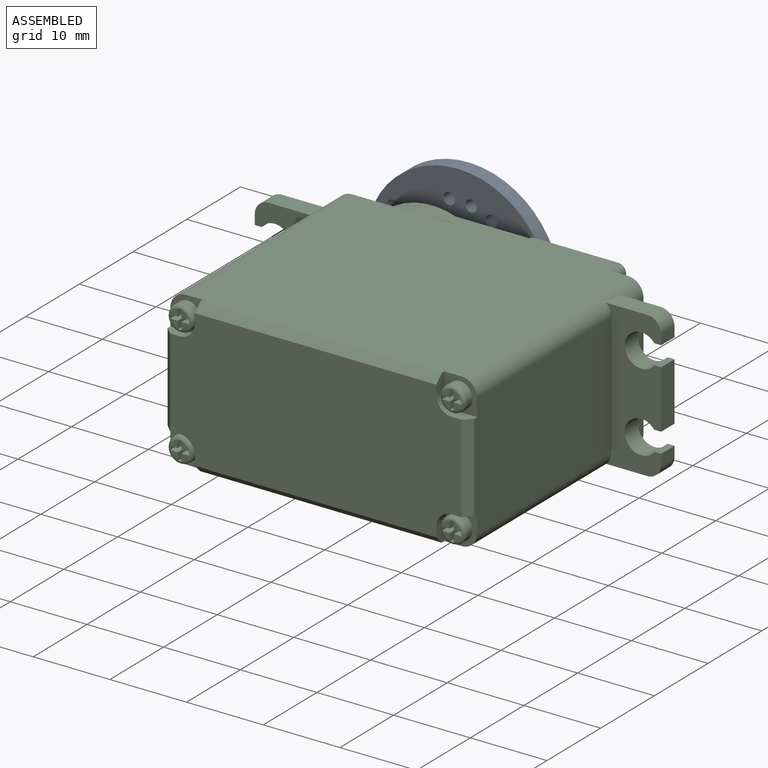
[diagram: assembled view]
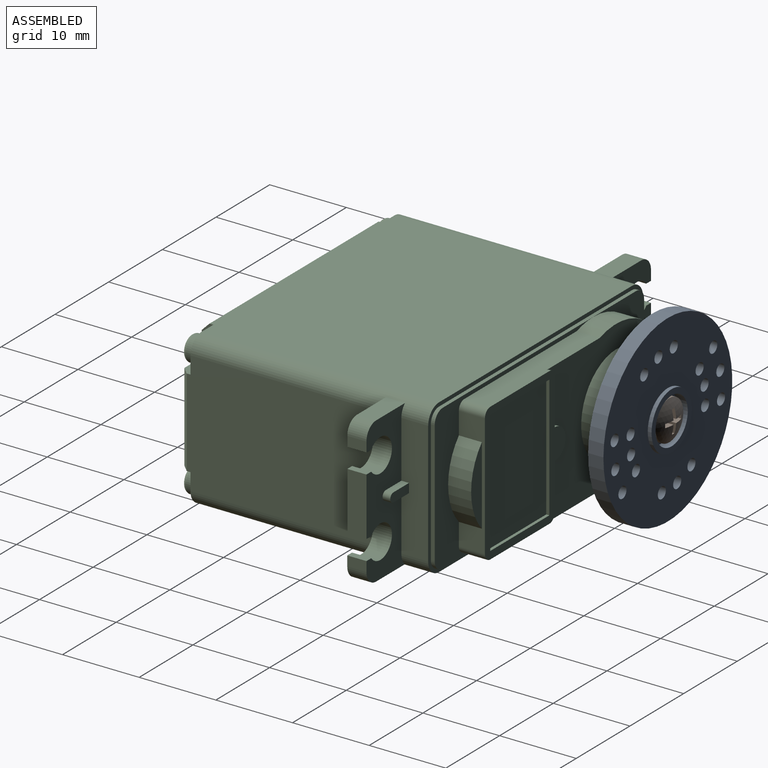
[diagram: assembled view, second angle]
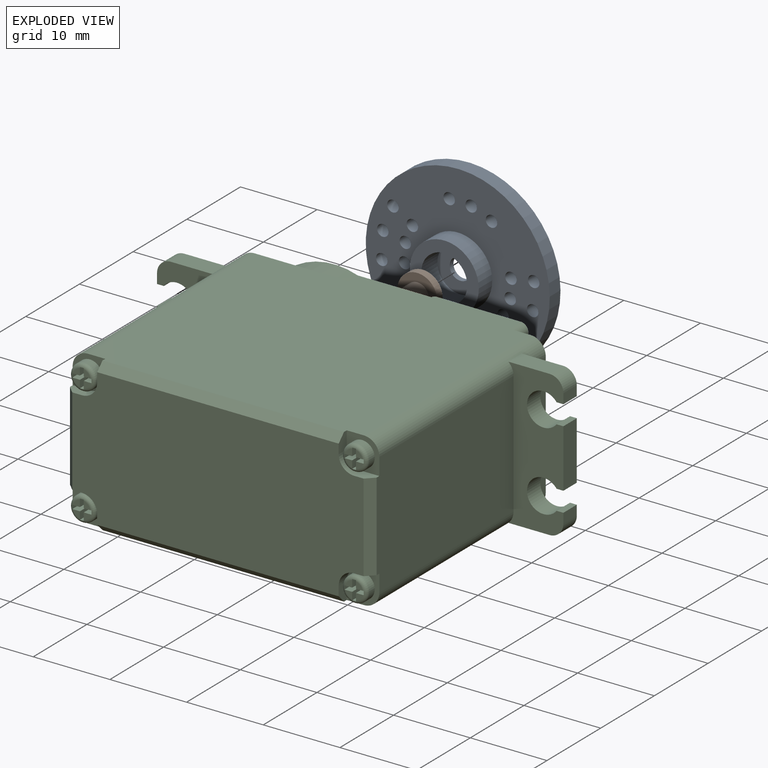
[diagram: exploded view]
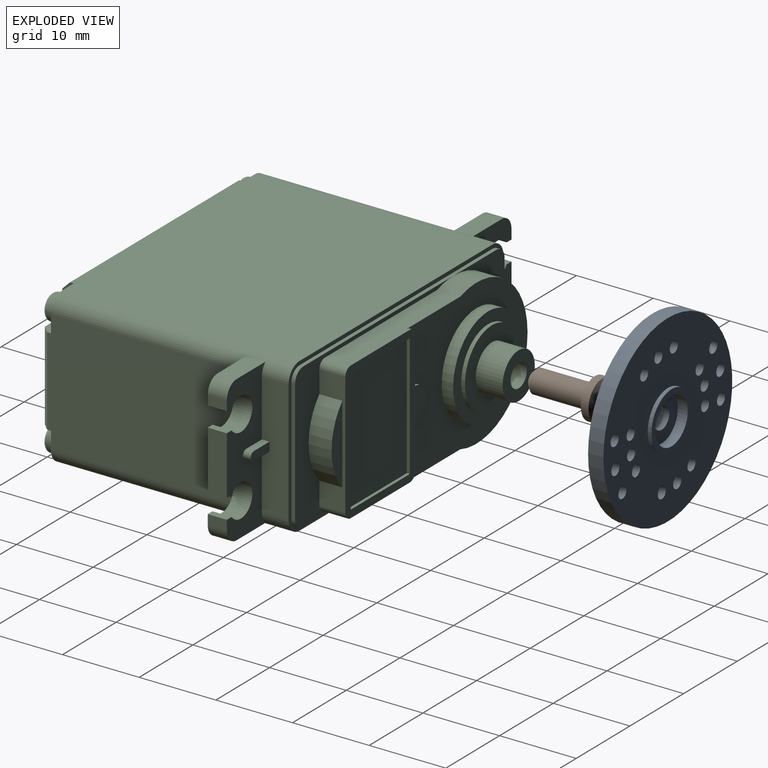
[diagram: exploded view, second angle]
ASSEMBLY  parts=3 mates=4
PART A: 30 faces, bbox 24x24x5 mm
  f0: cylinder r=0.75mm len=2mm, axis (0,0,1), area 9.4mm2, adj f26,f27
  f1: cylinder r=0.75mm len=2mm, axis (0,0,1), area 9.4mm2, adj f26,f27
  f2: cylinder r=0.75mm len=2mm, axis (0,0,1), area 9.4mm2, adj f26,f27
  f3: cylinder r=0.75mm len=2mm, axis (0,0,1), area 9.4mm2, adj f26,f27
  f4: cylinder r=0.75mm len=2mm, axis (0,0,1), area 9.4mm2, adj f26,f27
  f5: cylinder r=0.75mm len=2mm, axis (0,0,1), area 9.4mm2, adj f26,f27
  f6: cylinder r=0.75mm len=2mm, axis (0,0,1), area 9.4mm2, adj f26,f27
  f7: cylinder r=0.75mm len=2mm, axis (0,0,1), area 9.4mm2, adj f26,f27
  f8: cylinder r=0.75mm len=2mm, axis (0,0,1), area 9.4mm2, adj f26,f27
  f9: cylinder r=0.75mm len=2mm, axis (0,0,1), area 9.4mm2, adj f26,f27
  f10: cylinder r=0.75mm len=2mm, axis (0,0,1), area 9.4mm2, adj f26,f27
  f11: cylinder r=0.75mm len=2mm, axis (0,0,1), area 9.4mm2, adj f26,f27
  f12: cylinder r=0.75mm len=2mm, axis (0,0,1), area 9.4mm2, adj f26,f27
  f13: cylinder r=0.75mm len=2mm, axis (0,0,1), area 9.4mm2, adj f26,f27
  f14: cylinder r=0.75mm len=2mm, axis (0,0,1), area 9.4mm2, adj f26,f27
  f15: cylinder r=0.75mm len=2mm, axis (0,0,1), area 9.4mm2, adj f26,f27
  f16: cylinder r=0.75mm len=2mm, axis (0,0,1), area 9.4mm2, adj f26,f27
  f17: cylinder r=0.75mm len=2mm, axis (0,0,1), area 9.4mm2, adj f26,f27
  f18: cylinder r=1.4mm len=2.8mm, axis (0,0,1), area 6.2mm2, adj f24,f29
  f19: cylinder r=3mm len=6mm, axis (0,0,1), area 24.5mm2, adj f28,f29
  f20: cylinder r=3.75mm len=7.5mm, axis (0,0,1), area 11.8mm2, adj f27,f28
  f21: cylinder r=12mm len=24mm, axis (0,0,1), area 150.8mm2, adj f26,f27
  f22: cylinder r=4.5mm len=9mm, axis (0,0,1), area 70.7mm2, adj f25,f26
  f23: cylinder r=3mm len=6mm, axis (0,0,1), area 56.5mm2, adj f24,f25
  f24: plane 6x6mm, normal (0,0,-1), area 22.1mm2, adj f18,f23
  f25: plane 9x9mm, normal (0,0,-1), area 35.3mm2, adj f22,f23
  f26: plane 24x24mm, normal (0,0,-1), area 357mm2, adj f0,f1,f2,f3,f4,f5,f6,f7
  f27: plane 24x24mm, normal (0,0,1), area 376.4mm2, adj f0,f1,f2,f3,f4,f5,f6,f7
  f28: plane 7.5x7.5mm, normal (0,0,1), area 15.9mm2, adj f19,f20
  f29: plane 6x6mm, normal (0,0,1), area 22.1mm2, adj f18,f19
PART B: 19 faces, bbox 9.7x5.2x5.2 mm
  f0: cone r=1.5mm half-angle=45deg, axis (-1,0,0), area 5.6mm2, adj f2,f5
  f1: cylinder r=2.6mm len=5.2mm, axis (-1,0,0), area 16.3mm2, adj f3,f4
  f2: cylinder r=1.5mm len=7.5mm, axis (-1,0,0), area 70.7mm2, adj f0,f4
  f3: sphere r=5mm, area 20.1mm2, adj f1,f6,f7,f8,f9,f10,f11,f12
  f4: plane 5.2x5.2mm, normal (1,0,0), area 14.2mm2, adj f1,f2
  f5: plane 2x2mm, normal (1,0,0), area 3.1mm2, adj f0
  f6: plane 1.25x1.22mm, normal (0,0,1), area 1.4mm2, adj f3,f7,f17,f18
  f7: plane 1x0.5mm, normal (0,-1,0), area 0.5mm2, adj f3,f6,f8,f18
  f8: plane 1.25x1.22mm, normal (0,0,-1), area 1.4mm2, adj f3,f7,f9,f18
  f9: plane 1.25x1.22mm, normal (0,-1,0), area 1.4mm2, adj f3,f8,f10,f18
  f10: plane 1x0.5mm, normal (0,0,-1), area 0.5mm2, adj f3,f9,f11,f18
  f11: plane 1.25x1.22mm, normal (0,1,0), area 1.4mm2, adj f3,f10,f12,f18
  f12: plane 1.25x1.22mm, normal (0,0,-1), area 1.4mm2, adj f3,f11,f13,f18
  f13: plane 1x0.5mm, normal (0,1,0), area 0.5mm2, adj f3,f12,f14,f18
  f14: plane 1.25x1.22mm, normal (0,0,1), area 1.4mm2, adj f3,f13,f15,f18
  f15: plane 1.25x1.22mm, normal (0,1,0), area 1.4mm2, adj f3,f14,f16,f18
  f16: plane 1x0.5mm, normal (0,0,1), area 0.5mm2, adj f3,f15,f17,f18
  f17: plane 1.25x1.22mm, normal (0,-1,0), area 1.4mm2, adj f3,f6,f16,f18
  f18: plane 3x3mm, normal (-1,0,0), area 2.8mm2, adj f6,f7,f8,f9,f10,f11,f12,f13
PART C: 185 faces, bbox 53.1x41.6x20.1 mm
  f0: torus R=1.15mm, axis (0,-1,0), area 7mm2, adj f7,f17,f18,f19,f129,f130,f131,f132
  f1: torus R=1.15mm, axis (0,1,0), area 7mm2, adj f4,f20,f21,f22,f171,f172,f173,f174
  f2: torus R=1.15mm, axis (0,-1,0), area 7mm2, adj f5,f23,f24,f25,f157,f158,f159,f160
  f3: torus R=1.15mm, axis (0,1,0), area 7mm2, adj f6,f26,f27,f28,f143,f144,f145,f146
  f4: cylinder r=1.65mm len=3.3mm, axis (0,1,0), area 10.4mm2, adj f1,f29
  f5: cylinder r=1.65mm len=3.3mm, axis (0,1,0), area 10.4mm2, adj f2,f30
  f6: cylinder r=1.65mm len=3.3mm, axis (0,1,0), area 10.4mm2, adj f3,f31
  f7: cylinder r=1.65mm len=3.3mm, axis (0,1,0), area 10.4mm2, adj f0,f32
  f8: cylinder r=2.15mm len=4.3mm, axis (0,-1,0), area 26.8mm2, adj f36,f111,f117,f118
  f9: cylinder r=2.15mm len=4.3mm, axis (0,-1,0), area 26.8mm2, adj f36,f111,f114,f115
  f10: cylinder r=2.15mm len=4.3mm, axis (0,-1,0), area 26.8mm2, adj f34,f102,f103,f106
  f11: cylinder r=2.15mm len=4.3mm, axis (0,-1,0), area 26.8mm2, adj f34,f99,f100,f106
  f12: cylinder r=1.5mm len=3.5mm, axis (0,-1,0), area 33mm2, adj f93,f94
  f13: cylinder r=3mm len=6mm, axis (0,-1,0), area 66mm2, adj f43,f93
  f14: cylinder r=5mm len=10mm, axis (0,-1,0), area 15.7mm2, adj f43,f44
  f15: cylinder r=6.5mm len=13mm, axis (0,-1,0), area 61.3mm2, adj f44,f45
  f16: cylinder r=9.5mm len=19mm, axis (0,-1,0), area 108.1mm2, adj f41,f45,f46,f61,f79,f80
  f17: plane 0.87x0.87mm, normal (0,-1,0), area 0.5mm2, adj f0,f139,f140
  f18: plane 0.87x0.87mm, normal (0,-1,0), area 0.5mm2, adj f0,f130,f131
  f19: plane 0.87x0.87mm, normal (0,-1,0), area 0.5mm2, adj f0,f133,f134
  f20: plane 0.87x0.87mm, normal (0,-1,0), area 0.5mm2, adj f1,f176,f177
  f21: plane 0.87x0.87mm, normal (0,-1,0), area 0.5mm2, adj f1,f179,f180
  f22: plane 0.87x0.87mm, normal (0,-1,0), area 0.5mm2, adj f1,f182,f183
  f23: plane 0.87x0.87mm, normal (0,-1,0), area 0.5mm2, adj f2,f165,f166
  f24: plane 0.87x0.87mm, normal (0,-1,0), area 0.5mm2, adj f2,f168,f169
  f25: plane 0.87x0.87mm, normal (0,-1,0), area 0.5mm2, adj f2,f159,f160
  f26: plane 0.87x0.87mm, normal (0,-1,0), area 0.5mm2, adj f3,f144,f145
  f27: plane 0.87x0.87mm, normal (0,-1,0), area 0.5mm2, adj f3,f147,f148
  f28: plane 0.87x0.87mm, normal (0,-1,0), area 0.5mm2, adj f3,f150,f151
  f29: plane 4.25x4.25mm, normal (0,-1,0), area 7.8mm2, adj f4,f37,f50,f51,f71,f72,f73
  f30: plane 4.25x4.25mm, normal (0,-1,0), area 7.8mm2, adj f5,f40,f49,f50,f68,f69,f70
  f31: plane 4.25x4.25mm, normal (0,-1,0), area 7.8mm2, adj f6,f38,f48,f49,f65,f66,f67
  f32: plane 4.25x4.25mm, normal (0,-1,0), area 7.8mm2, adj f7,f39,f48,f51,f62,f63,f64
  f33: plane 16x3.5mm, normal (-1,0,0), area 54.8mm2, adj f34,f37,f39,f47,f125,f126,f127
  f34: plane 19x7.18mm, normal (0,1,0), area 86.6mm2, adj f10,f11,f33,f37,f39,f97,f98,f99
  f35: plane 16x3.5mm, normal (1,0,0), area 54.8mm2, adj f36,f38,f40,f47,f121,f122,f123
  f36: plane 19x7.18mm, normal (0,1,0), area 86.6mm2, adj f8,f9,f35,f38,f40,f109,f110,f112
  f37: cylinder r=2mm len=31mm, axis (0,-1,0), area 93.1mm2, adj f29,f33,f34,f47,f50,f51,f106,f108
  f38: cylinder r=2mm len=31mm, axis (0,-1,0), area 93.1mm2, adj f31,f35,f36,f47,f48,f49,f109,f111
  f39: cylinder r=2mm len=31mm, axis (0,-1,0), area 93.1mm2, adj f32,f33,f34,f47,f48,f51,f106,f107
  f40: cylinder r=2mm len=31mm, axis (0,-1,0), area 93.1mm2, adj f30,f35,f36,f47,f49,f50,f110,f111
  f41: plane 29.5x19mm, normal (0,1,0), area 93.9mm2, adj f16,f42,f54,f55,f56,f57,f58,f78
  f42: plane 16x3.4mm, normal (1,0,0), area 23.8mm2, adj f41,f78,f81,f91,f95,f96
  f43: plane 10x10mm, normal (0,1,0), area 50.3mm2, adj f13,f14
  f44: plane 13x13mm, normal (0,1,0), area 54.2mm2, adj f14,f15
  f45: plane 22.5x19mm, normal (0,1,0), area 221.2mm2, adj f15,f16,f79,f80,f85,f86,f87,f88
  f46: plane 9.5x9.5mm, normal (0,1,0), area 18.9mm2, adj f16,f53,f54,f60
  f47: plane 40x20mm, normal (0,1,0), area 57.5mm2, adj f33,f35,f37,f38,f39,f40,f48,f50
  f48: plane 36x31.5mm, normal (0,0,1), area 1131.8mm2, adj f31,f32,f38,f39,f47,f62,f65,f77
  f49: plane 25.5x16mm, normal (1,0,0), area 405.7mm2, adj f30,f31,f38,f40,f66,f68,f74,f111
  f50: plane 36x31.5mm, normal (0,0,-1), area 1131.7mm2, adj f29,f30,f37,f40,f47,f69,f71,f75
  f51: plane 25.5x16mm, normal (-1,0,0), area 405.8mm2, adj f29,f32,f37,f39,f63,f72,f76,f106
  f52: plane 38x18mm, normal (0,-1,0), area 645.2mm2, adj f62,f63,f64,f65,f66,f67,f68,f69
  f53: cylinder r=1.5mm len=1.5mm, axis (0,-1,0), area 1.2mm2, adj f46,f47,f54,f60
  f54: plane 36x0.5mm, normal (0,0,1), area 18mm2, adj f41,f46,f47,f53,f55
  f55: cylinder r=1.5mm len=1.5mm, axis (0,-1,0), area 1.2mm2, adj f41,f47,f54,f56
  f56: plane 16x0.5mm, normal (1,0,0), area 8mm2, adj f41,f47,f55,f57
  f57: cylinder r=1.5mm len=1.5mm, axis (0,-1,0), area 1.2mm2, adj f41,f47,f56,f58
  f58: plane 36x0.5mm, normal (0,0,-1), area 18mm2, adj f41,f47,f57,f59,f61
  f59: cylinder r=1.5mm len=1.5mm, axis (0,-1,0), area 1.2mm2, adj f47,f58,f60,f61
  f60: plane 16x0.5mm, normal (-1,0,0), area 8mm2, adj f46,f47,f53,f59,f61
  f61: plane 9.5x9.5mm, normal (0,1,0), area 18.9mm2, adj f16,f58,f59,f60
  f62: plane 2.25x1.5mm, normal (-1,0,0), area 2.9mm2, adj f32,f48,f52,f64,f77
  f63: plane 2.25x1.5mm, normal (0,0,1), area 2.9mm2, adj f32,f51,f52,f64,f76
  f64: cylinder r=2mm len=2mm, axis (0,-1,0), area 4.7mm2, adj f32,f52,f62,f63
  f65: plane 2.25x1.5mm, normal (1,0,0), area 2.9mm2, adj f31,f48,f52,f67,f77
  f66: plane 2.25x1.5mm, normal (0,0,1), area 2.9mm2, adj f31,f49,f52,f67,f74
  f67: cylinder r=2mm len=2mm, axis (0,-1,0), area 4.7mm2, adj f31,f52,f65,f66
  f68: plane 2.25x1.5mm, normal (0,0,-1), area 2.9mm2, adj f30,f49,f52,f70,f74
  f69: plane 2.25x1.5mm, normal (1,0,0), area 2.9mm2, adj f30,f50,f52,f70,f75
  f70: cylinder r=2mm len=2mm, axis (0,-1,0), area 4.7mm2, adj f30,f52,f68,f69
  f71: plane 2.25x1.5mm, normal (-1,0,0), area 2.9mm2, adj f29,f50,f52,f73,f75
  f72: plane 2.25x1.5mm, normal (0,0,-1), area 2.9mm2, adj f29,f51,f52,f73,f76
  f73: cylinder r=2mm len=2mm, axis (0,-1,0), area 4.7mm2, adj f29,f52,f71,f72
  f74: plane 11.5x1mm, normal (0.71,-0.71,0), area 16.3mm2, adj f49,f52,f66,f68
  f75: plane 31.5x1mm, normal (0,-0.71,-0.71), area 44.5mm2, adj f50,f52,f69,f71
  f76: plane 11.5x1mm, normal (-0.71,-0.71,0), area 16.3mm2, adj f51,f52,f63,f72
  f77: plane 31.5x1mm, normal (0,-0.71,0.71), area 44.5mm2, adj f48,f52,f62,f65
  f78: cylinder r=1mm len=3.4mm, axis (0,-1,0), area 5.3mm2, adj f41,f42,f79,f91
  f79: plane 20.96x3.4mm, normal (0,0,-1), area 67.3mm2, adj f16,f41,f45,f78,f88,f91
  f80: plane 20.96x3.4mm, normal (0,0,1), area 67.3mm2, adj f16,f41,f45,f81,f87,f91
  f81: cylinder r=1mm len=3.4mm, axis (0,-1,0), area 5.3mm2, adj f41,f42,f80,f91
  f82: plane 16x0.4mm, normal (-1,0,0), area 6.4mm2, adj f83,f90,f91,f92
  f83: plane 11x0.4mm, normal (0,0,-1), area 4.4mm2, adj f82,f84,f91,f92
  f84: plane 16x0.4mm, normal (1,0,0), area 6.4mm2, adj f83,f90,f91,f92
  f85: cylinder r=2mm len=4mm, axis (0,-1,0), area 2.5mm2, adj f45,f86,f89,f91
  f86: plane 6x0.4mm, normal (-1,0,0), area 2.4mm2, adj f45,f85,f87,f91
  f87: cylinder r=1mm len=1mm, axis (0,-1,0), area 0.6mm2, adj f45,f80,f86,f91
  f88: cylinder r=1mm len=1mm, axis (0,-1,0), area 0.6mm2, adj f45,f79,f89,f91
  f89: plane 6x0.4mm, normal (-1,0,0), area 2.4mm2, adj f45,f85,f88,f91
  f90: plane 11x0.4mm, normal (0,0,1), area 4.4mm2, adj f82,f84,f91,f92
  f91: plane 18x15mm, normal (0,1,0), area 63.4mm2, adj f42,f78,f79,f80,f81,f82,f83,f84
  f92: plane 16x11mm, normal (0,1,0), area 176mm2, adj f82,f83,f84,f90
  f93: plane 6x6mm, normal (0,1,0), area 21.2mm2, adj f12,f13
  f94: plane 3x3mm, normal (0,1,0), area 7.1mm2, adj f12
  f95: cylinder r=7.5mm len=10.2mm, axis (0,-1,0), area 33.6mm2, adj f41,f42,f96
  f96: plane 10.2x2mm, normal (0,1,0), area 14mm2, adj f42,f95
  f97: cylinder r=1.81mm len=2.5mm, axis (0,-1,0), area 7.1mm2, adj f34,f98,f106,f108
  f98: plane 2.5x1.29mm, normal (-1,0,0), area 3.2mm2, adj f34,f97,f99,f106
  f99: plane 2.5x0.89mm, normal (0,0,1), area 2.2mm2, adj f11,f34,f98,f106
  f100: plane 2.5x0.89mm, normal (0,0,-1), area 2.2mm2, adj f11,f34,f101,f106
  f101: plane 7.6x2.5mm, normal (-1,0,0), area 19mm2, adj f34,f100,f102,f106
  f102: plane 2.5x0.89mm, normal (0,0,1), area 2.2mm2, adj f10,f34,f101,f106
  f103: plane 2.5x0.89mm, normal (0,0,-1), area 2.2mm2, adj f10,f34,f104,f106
  f104: plane 2.5x1.29mm, normal (-1,0,0), area 3.2mm2, adj f34,f103,f105,f106
  f105: cylinder r=1.81mm len=2.5mm, axis (0,-1,0), area 7.1mm2, adj f34,f104,f106,f107
  f106: plane 19x7.18mm, normal (0,-1,0), area 90.6mm2, adj f10,f11,f37,f39,f51,f97,f98,f99
  f107: plane 5.37x2.5mm, normal (0,0,1), area 13.4mm2, adj f34,f39,f105,f106
  f108: plane 5.37x2.5mm, normal (0,0,-1), area 13.4mm2, adj f34,f37,f97,f106
  f109: plane 5.37x2.5mm, normal (0,0,1), area 13.4mm2, adj f36,f38,f111,f112
  f110: plane 5.37x2.5mm, normal (0,0,-1), area 13.4mm2, adj f36,f40,f111,f120
  f111: plane 19x7.18mm, normal (0,-1,0), area 90.6mm2, adj f8,f9,f38,f40,f49,f109,f110,f112
  f112: cylinder r=1.81mm len=2.5mm, axis (0,-1,0), area 7.1mm2, adj f36,f109,f111,f113
  f113: plane 2.5x1.29mm, normal (1,0,0), area 3.2mm2, adj f36,f111,f112,f114
  f114: plane 2.5x0.89mm, normal (0,0,-1), area 2.2mm2, adj f9,f36,f111,f113
  f115: plane 2.5x0.89mm, normal (0,0,1), area 2.2mm2, adj f9,f36,f111,f116
  f116: plane 7.6x2.5mm, normal (1,0,0), area 19mm2, adj f36,f111,f115,f117
  f117: plane 2.5x0.89mm, normal (0,0,-1), area 2.2mm2, adj f8,f36,f111,f116
  f118: plane 2.5x0.89mm, normal (0,0,1), area 2.2mm2, adj f8,f36,f111,f119
  f119: plane 2.5x1.29mm, normal (1,0,0), area 3.2mm2, adj f36,f111,f118,f120
  f120: cylinder r=1.81mm len=2.5mm, axis (0,-1,0), area 7.1mm2, adj f36,f110,f111,f119
  f121: plane 3.5x1.2mm, normal (0,1,0), area 4mm2, adj f35,f122,f123,f124
  f122: plane 2.9x1mm, normal (0,0,-1), area 2.9mm2, adj f35,f36,f121,f124
  f123: plane 2.9x1mm, normal (0,0,1), area 2.9mm2, adj f35,f36,f121,f124
  f124: cylinder r=0.6mm len=1.2mm, axis (0,-1,0), area 1.9mm2, adj f36,f121,f122,f123
  f125: plane 3.5x1.2mm, normal (0,1,0), area 4mm2, adj f33,f126,f127,f128
  f126: plane 2.9x1mm, normal (0,0,1), area 2.9mm2, adj f33,f34,f125,f128
  f127: plane 2.9x1mm, normal (0,0,-1), area 2.9mm2, adj f33,f34,f125,f128
  f128: cylinder r=0.6mm len=1.2mm, axis (0,-1,0), area 1.9mm2, adj f34,f125,f126,f127
  f129: plane 0.87x0.87mm, normal (0,-1,0), area 0.5mm2, adj f0,f136,f137
  f130: plane 1.5x1mm, normal (1,0,0), area 1.5mm2, adj f0,f18,f131,f141,f142
  f131: plane 1.5x1mm, normal (0,0,-1), area 1.5mm2, adj f0,f18,f130,f132,f142
  f132: plane 1.54x0.55mm, normal (1,0,0), area 0.7mm2, adj f0,f131,f133,f142
  f133: plane 1.5x1mm, normal (0,0,1), area 1.5mm2, adj f0,f19,f132,f134,f142
  f134: plane 1.5x1mm, normal (1,0,0), area 1.5mm2, adj f0,f19,f133,f135,f142
  f135: plane 1.51x0.52mm, normal (0,0,1), area 0.7mm2, adj f0,f134,f136,f142
  f136: plane 1.5x1mm, normal (-1,0,0), area 1.5mm2, adj f0,f129,f135,f137,f142
  f137: plane 1.5x1mm, normal (0,0,1), area 1.5mm2, adj f0,f129,f136,f138,f142
  f138: plane 1.54x0.55mm, normal (-1,0,0), area 0.7mm2, adj f0,f137,f139,f142
  f139: plane 1.5x1mm, normal (0,0,-1), area 1.5mm2, adj f0,f17,f138,f140,f142
  f140: plane 1.5x1mm, normal (-1,0,0), area 1.5mm2, adj f0,f17,f139,f141,f142
  f141: plane 1.51x0.52mm, normal (0,0,-1), area 0.7mm2, adj f0,f130,f140,f142
  f142: plane 2.5x2.5mm, normal (0,-1,0), area 2.3mm2, adj f130,f131,f132,f133,f134,f135,f136,f137
  f143: plane 0.87x0.87mm, normal (0,-1,0), area 0.5mm2, adj f3,f153,f154
  f144: plane 1.5x1mm, normal (0,0,1), area 1.5mm2, adj f3,f26,f145,f155,f156
  f145: plane 1.5x1mm, normal (1,0,0), area 1.5mm2, adj f3,f26,f144,f146,f156
  f146: plane 1.51x0.52mm, normal (0,0,1), area 0.7mm2, adj f3,f145,f147,f156
  f147: plane 1.5x1mm, normal (-1,0,0), area 1.5mm2, adj f3,f27,f146,f148,f156
  f148: plane 1.5x1mm, normal (0,0,1), area 1.5mm2, adj f3,f27,f147,f149,f156
  f149: plane 1.54x0.55mm, normal (-1,0,0), area 0.7mm2, adj f3,f148,f150,f156
  f150: plane 1.5x1mm, normal (0,0,-1), area 1.5mm2, adj f3,f28,f149,f151,f156
  f151: plane 1.5x1mm, normal (-1,0,0), area 1.5mm2, adj f3,f28,f150,f152,f156
  f152: plane 1.51x0.52mm, normal (0,0,-1), area 0.7mm2, adj f3,f151,f153,f156
  f153: plane 1.5x1mm, normal (1,0,0), area 1.5mm2, adj f3,f143,f152,f154,f156
  f154: plane 1.5x1mm, normal (0,0,-1), area 1.5mm2, adj f3,f143,f153,f155,f156
  f155: plane 1.54x0.55mm, normal (1,0,0), area 0.7mm2, adj f3,f144,f154,f156
  f156: plane 2.5x2.5mm, normal (0,-1,0), area 2.3mm2, adj f144,f145,f146,f147,f148,f149,f150,f151
  f157: plane 0.87x0.87mm, normal (0,-1,0), area 0.5mm2, adj f2,f162,f163
  f158: plane 1.54x0.55mm, normal (1,0,0), area 0.7mm2, adj f2,f159,f169,f170
  f159: plane 1.5x1mm, normal (0,0,1), area 1.5mm2, adj f2,f25,f158,f160,f170
  f160: plane 1.5x1mm, normal (1,0,0), area 1.5mm2, adj f2,f25,f159,f161,f170
  f161: plane 1.51x0.52mm, normal (0,0,1), area 0.7mm2, adj f2,f160,f162,f170
  f162: plane 1.5x1mm, normal (-1,0,0), area 1.5mm2, adj f2,f157,f161,f163,f170
  f163: plane 1.5x1mm, normal (0,0,1), area 1.5mm2, adj f2,f157,f162,f164,f170
  f164: plane 1.54x0.55mm, normal (-1,0,0), area 0.7mm2, adj f2,f163,f165,f170
  f165: plane 1.5x1mm, normal (0,0,-1), area 1.5mm2, adj f2,f23,f164,f166,f170
  f166: plane 1.5x1mm, normal (-1,0,0), area 1.5mm2, adj f2,f23,f165,f167,f170
  f167: plane 1.51x0.52mm, normal (0,0,-1), area 0.7mm2, adj f2,f166,f168,f170
  f168: plane 1.5x1mm, normal (1,0,0), area 1.5mm2, adj f2,f24,f167,f169,f170
  f169: plane 1.5x1mm, normal (0,0,-1), area 1.5mm2, adj f2,f24,f158,f168,f170
  f170: plane 2.5x2.5mm, normal (0,-1,0), area 2.3mm2, adj f158,f159,f160,f161,f162,f163,f164,f165
  f171: plane 0.87x0.87mm, normal (0,-1,0), area 0.5mm2, adj f1,f173,f174
  f172: plane 1.51x0.52mm, normal (0,0,-1), area 0.7mm2, adj f1,f173,f183,f184
  f173: plane 1.5x1mm, normal (1,0,0), area 1.5mm2, adj f1,f171,f172,f174,f184
  f174: plane 1.5x1mm, normal (0,0,-1), area 1.5mm2, adj f1,f171,f173,f175,f184
  f175: plane 1.54x0.55mm, normal (1,0,0), area 0.7mm2, adj f1,f174,f176,f184
  f176: plane 1.5x1mm, normal (0,0,1), area 1.5mm2, adj f1,f20,f175,f177,f184
  f177: plane 1.5x1mm, normal (1,0,0), area 1.5mm2, adj f1,f20,f176,f178,f184
  f178: plane 1.51x0.52mm, normal (0,0,1), area 0.7mm2, adj f1,f177,f179,f184
  f179: plane 1.5x1mm, normal (-1,0,0), area 1.5mm2, adj f1,f21,f178,f180,f184
  f180: plane 1.5x1mm, normal (0,0,1), area 1.5mm2, adj f1,f21,f179,f181,f184
  f181: plane 1.54x0.55mm, normal (-1,0,0), area 0.7mm2, adj f1,f180,f182,f184
  f182: plane 1.5x1mm, normal (0,0,-1), area 1.5mm2, adj f1,f22,f181,f183,f184
  f183: plane 1.5x1mm, normal (-1,0,0), area 1.5mm2, adj f1,f22,f172,f182,f184
  f184: plane 2.5x2.5mm, normal (0,-1,0), area 2.3mm2, adj f172,f173,f174,f175,f176,f177,f178,f179
PLACE A rot(axis=(-0.5,0.61,0.61),127.3deg) t=(-2.76,35.01,-3.77)mm
PLACE B rot(axis=(0,0,-1),90deg) t=(-2.76,26.21,-3.77)mm
PLACE C t=(7.24,-7.74,-3.77)mm fixed
MATE planar A.f18 <-> C.f12  axis (0,-1,0) through (-2.76,33.51,-3.77)mm
MATE planar B.f1 <-> A.f18  axis (0,-1,0) through (-2.76,34.21,-3.77)mm
MATE slider C.f12 <-> B.f1  axis (0,-1,0) through (-2.76,33.76,-3.77)mm
MATE revolute C.f12 <-> A.f18  axis (0,-1,0) through (-2.76,32.01,-3.77)mm
